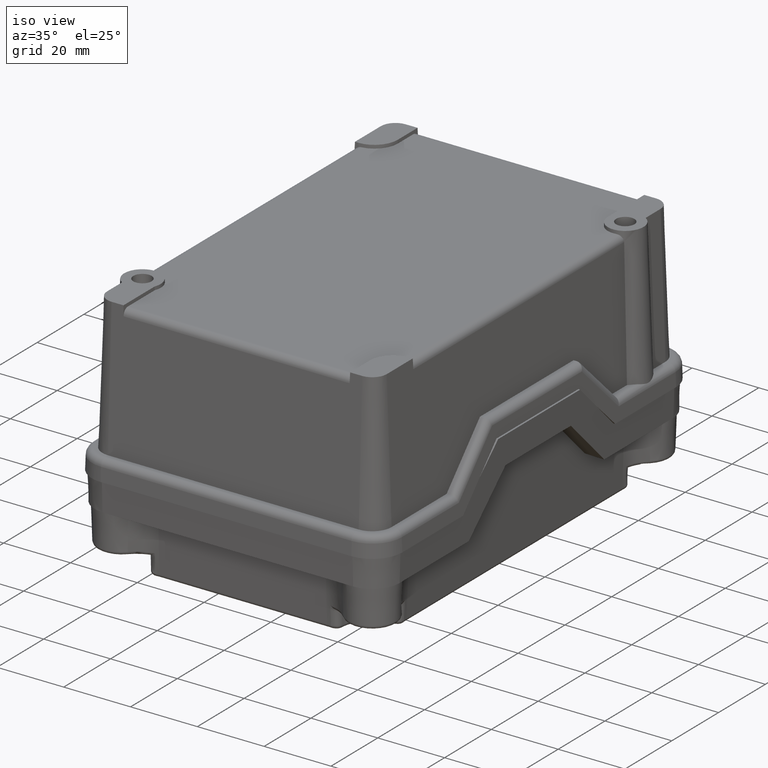
[diagram: clean part render]
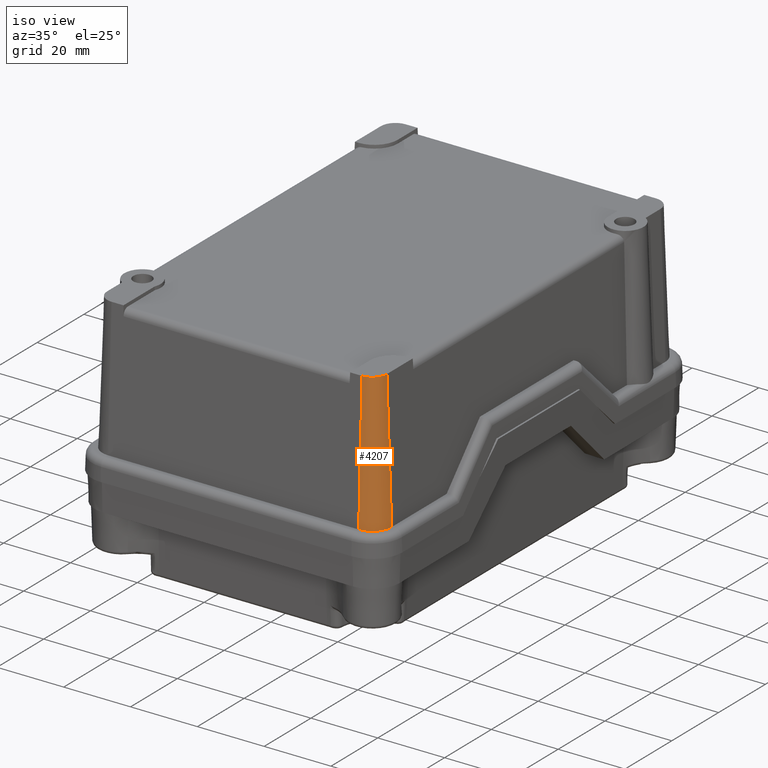
[diagram: same view with one face highlighted and labeled with its STEP entity id]
A machine part, iso view. The second image highlights one B-rep face of the part: STEP entity #4207.
In plain terms, the highlighted conical surface has half-angle 2 deg.
Its self-contained STEP definition (entity closure, byte-faithful):
#2761=CARTESIAN_POINT('',(74.675566945933895,-17.900412990563549,6.000000000000014));
#2762=VERTEX_POINT('',#2761);
#2769=CARTESIAN_POINT('',(68.885091562884426,-23.690888373613028,6.000000000000014));
#2770=VERTEX_POINT('',#2769);
#2771=CARTESIAN_POINT('',(68.885091562884426,-17.900412990563549,6.000000000000014));
#2772=DIRECTION('',(0.0,0.0,1.0));
#2773=DIRECTION('',(0.0,-1.0,0.0));
#2774=AXIS2_PLACEMENT_3D('',#2771,#2772,#2773);
#2775=CIRCLE('',#2774,5.790475383049475);
#2776=EDGE_CURVE('',#2770,#2762,#2775,.T.);
#3110=CARTESIAN_POINT('',(73.243815396772249,-17.900412990563549,47.0));
#3111=VERTEX_POINT('',#3110);
#3118=CARTESIAN_POINT('',(74.675566945933895,-17.900412990563549,6.000000000000014));
#3119=DIRECTION('',(-0.034899496702501,0.0,0.999390827019096));
#3120=VECTOR('',#3119,41.024991316251679);
#3121=LINE('',#3118,#3120);
#3122=EDGE_CURVE('',#2762,#3111,#3121,.T.);
#3217=CARTESIAN_POINT('',(68.885091562884426,-22.259136824451371,47.0));
#3218=VERTEX_POINT('',#3217);
#3219=CARTESIAN_POINT('',(68.885091562884426,-23.690888373613028,6.000000000000014));
#3220=DIRECTION('',(0.0,0.034899496702501,0.999390827019096));
#3221=VECTOR('',#3220,41.024991316251679);
#3222=LINE('',#3219,#3221);
#3223=EDGE_CURVE('',#2770,#3218,#3222,.T.);
#3839=CARTESIAN_POINT('',(68.885091562884426,-17.900412990563549,47.0));
#3840=DIRECTION('',(0.0,0.0,-1.0));
#3841=DIRECTION('',(0.0,-1.0,0.0));
#3842=AXIS2_PLACEMENT_3D('',#3839,#3840,#3841);
#3843=CIRCLE('',#3842,4.358723833887819);
#3844=EDGE_CURVE('',#3111,#3218,#3843,.T.);
#4196=CARTESIAN_POINT('',(68.885091562884426,-17.900412990563549,46.000000000000007));
#4197=DIRECTION('',(0.0,0.0,-1.0));
#4198=DIRECTION('',(0.0,-1.0,0.0));
#4199=AXIS2_PLACEMENT_3D('',#4196,#4197,#4198);
#4200=CONICAL_SURFACE('',#4199,4.393644603379566,2.0);
#4201=ORIENTED_EDGE('',*,*,#2776,.T.);
#4202=ORIENTED_EDGE('',*,*,#3122,.T.);
#4203=ORIENTED_EDGE('',*,*,#3844,.T.);
#4204=ORIENTED_EDGE('',*,*,#3223,.F.);
#4205=EDGE_LOOP('',(#4201,#4202,#4203,#4204));
#4206=FACE_OUTER_BOUND('',#4205,.T.);
#4207=ADVANCED_FACE('',(#4206),#4200,.T.);